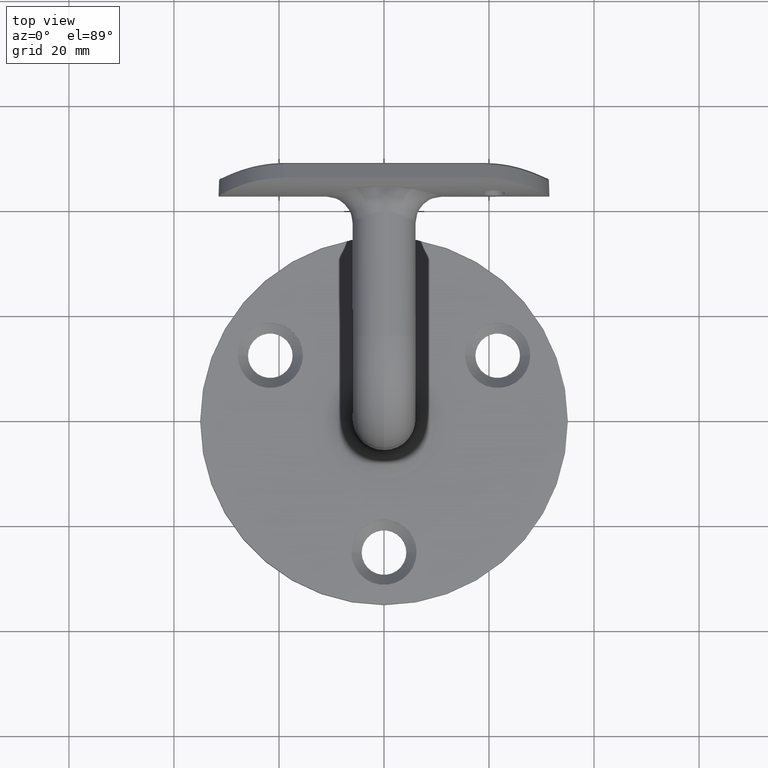
[diagram: clean part render]
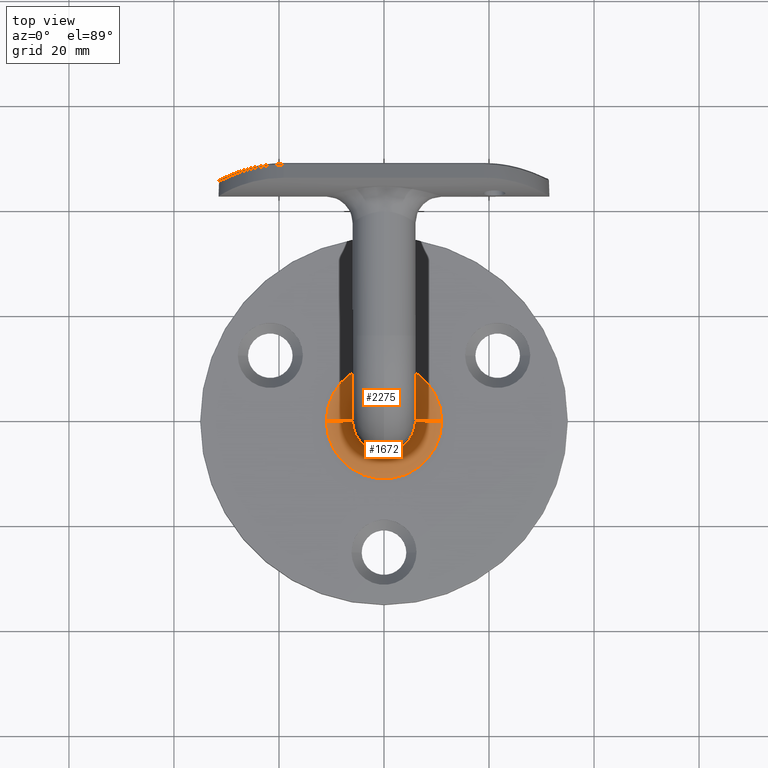
[diagram: same view with one multi-face feature highlighted, each face labeled with its STEP entity id]
A machine part, top view. The highlighted faces form ONE feature: a constant-radius fillet chain: 2 tangent blend faces with common blend radius 5 mm. The faces share edges in the B-rep.
Their STEP definitions:
[1] entity #1672 (Torus):
#450 = DIRECTION ( 'NONE',  ( 0.000000000000000000, 0.000000000000000000, 1.000000000000000000 ) ) ;
#535 = VERTEX_POINT ( 'NONE', #8327 ) ;
#768 = DIRECTION ( 'NONE',  ( 0.000000000000000000, -1.000000000000000000, 0.000000000000000000 ) ) ;
#859 = VERTEX_POINT ( 'NONE', #8415 ) ;
#971 = DIRECTION ( 'NONE',  ( 0.000000000000000000, 0.000000000000000000, -1.000000000000000000 ) ) ;
#1136 = AXIS2_PLACEMENT_3D ( 'NONE', #4525, #14401, #10807 ) ;
#1672 = ADVANCED_FACE ( 'NONE', ( #12114 ), #2709, .F. ) ;
#1696 = DIRECTION ( 'NONE',  ( 1.000000000000000000, 0.000000000000000000, 0.000000000000000000 ) ) ;
#2709 = TOROIDAL_SURFACE ( 'NONE', #12638, 11.00000000000000178, 5.000000000000000000 ) ;
#3228 = AXIS2_PLACEMENT_3D ( 'NONE', #8409, #7196, #12220 ) ;
#3425 = CARTESIAN_POINT ( 'NONE',  ( 11.00000000000000178, -1.156482317317871133E-15, 5.000000000000000888 ) ) ;
#3997 = CIRCLE ( 'NONE', #8466, 11.00000000000000178 ) ;
#4525 = CARTESIAN_POINT ( 'NONE',  ( 0.000000000000000000, -1.156482317317871133E-15, 10.00000000000000178 ) ) ;
#4552 = ORIENTED_EDGE ( 'NONE', *, *, #9176, .F. ) ;
#4605 = CARTESIAN_POINT ( 'NONE',  ( -6.000000000000000888, -1.155325380426208949E-16, 10.00000000000000178 ) ) ;
#4941 = CIRCLE ( 'NONE', #1136, 6.000000000000000888 ) ;
#5035 = ORIENTED_EDGE ( 'NONE', *, *, #9914, .T. ) ;
#5096 = CIRCLE ( 'NONE', #3228, 4.999999999999999112 ) ;
#5295 = EDGE_CURVE ( 'NONE', #5570, #535, #3997, .T. ) ;
#5570 = VERTEX_POINT ( 'NONE', #3425 ) ;
#5826 = DIRECTION ( 'NONE',  ( -0.000000000000000000, -0.000000000000000000, -1.000000000000000000 ) ) ;
#6218 = DIRECTION ( 'NONE',  ( 0.000000000000000000, 0.000000000000000000, 1.000000000000000000 ) ) ;
#6479 = CIRCLE ( 'NONE', #13006, 6.000000000000000888 ) ;
#6890 = EDGE_CURVE ( 'NONE', #15431, #859, #4941, .T. ) ;
#7196 = DIRECTION ( 'NONE',  ( 1.224646799147353207E-16, 1.000000000000000000, -0.000000000000000000 ) ) ;
#7334 = ORIENTED_EDGE ( 'NONE', *, *, #5295, .F. ) ;
#7584 = DIRECTION ( 'NONE',  ( 1.000000000000000000, 0.000000000000000000, 0.000000000000000000 ) ) ;
#8135 = VERTEX_POINT ( 'NONE', #4605 ) ;
#8261 = CARTESIAN_POINT ( 'NONE',  ( 11.00000000000000178, -1.156482317317871133E-15, 10.00000000000000178 ) ) ;
#8327 = CARTESIAN_POINT ( 'NONE',  ( -11.00000000000000178, 1.906291617442173946E-16, 5.000000000000000888 ) ) ;
#8409 = CARTESIAN_POINT ( 'NONE',  ( -11.00000000000000178, 1.906291617442174932E-16, 10.00000000000000178 ) ) ;
#8415 = CARTESIAN_POINT ( 'NONE',  ( 6.000000000000000888, -1.156482317317871133E-15, 10.00000000000000178 ) ) ;
#8466 = AXIS2_PLACEMENT_3D ( 'NONE', #13329, #5826, #15836 ) ;
#9147 = CARTESIAN_POINT ( 'NONE',  ( 0.000000000000000000, -1.156482317317871133E-15, 10.00000000000000178 ) ) ;
#9176 = EDGE_CURVE ( 'NONE', #859, #5570, #10414, .T. ) ;
#9757 = EDGE_LOOP ( 'NONE', ( #10744, #5035, #7334, #4552, #10546 ) ) ;
#9914 = EDGE_CURVE ( 'NONE', #8135, #535, #5096, .T. ) ;
#10414 = CIRCLE ( 'NONE', #12783, 5.000000000000000000 ) ;
#10546 = ORIENTED_EDGE ( 'NONE', *, *, #6890, .F. ) ;
#10744 = ORIENTED_EDGE ( 'NONE', *, *, #15260, .F. ) ;
#10807 = DIRECTION ( 'NONE',  ( 1.000000000000000000, 0.000000000000000000, 0.000000000000000000 ) ) ;
#11159 = CARTESIAN_POINT ( 'NONE',  ( 0.000000000000000000, -1.156482317317871133E-15, 10.00000000000000178 ) ) ;
#11961 = CARTESIAN_POINT ( 'NONE',  ( 7.347880794884120722E-16, -6.000000000000001776, 10.00000000000000178 ) ) ;
#12114 = FACE_OUTER_BOUND ( 'NONE', #9757, .T. ) ;
#12220 = DIRECTION ( 'NONE',  ( -1.000000000000000000, 1.224646799147353454E-16, 0.000000000000000000 ) ) ;
#12638 = AXIS2_PLACEMENT_3D ( 'NONE', #9147, #450, #1696 ) ;
#12783 = AXIS2_PLACEMENT_3D ( 'NONE', #8261, #768, #971 ) ;
#13006 = AXIS2_PLACEMENT_3D ( 'NONE', #11159, #6218, #7584 ) ;
#13329 = CARTESIAN_POINT ( 'NONE',  ( 0.000000000000000000, -1.156482317317871133E-15, 5.000000000000000000 ) ) ;
#14401 = DIRECTION ( 'NONE',  ( 0.000000000000000000, 0.000000000000000000, 1.000000000000000000 ) ) ;
#15260 = EDGE_CURVE ( 'NONE', #8135, #15431, #6479, .T. ) ;
#15431 = VERTEX_POINT ( 'NONE', #11961 ) ;
#15836 = DIRECTION ( 'NONE',  ( 1.000000000000000000, 0.000000000000000000, 0.000000000000000000 ) ) ;
[2] entity #2275 (Torus):
#373 = ORIENTED_EDGE ( 'NONE', *, *, #9176, .T. ) ;
#485 = CARTESIAN_POINT ( 'NONE',  ( 0.000000000000000000, -1.156482317317871133E-15, 10.00000000000000178 ) ) ;
#529 = ORIENTED_EDGE ( 'NONE', *, *, #6138, .F. ) ;
#535 = VERTEX_POINT ( 'NONE', #8327 ) ;
#768 = DIRECTION ( 'NONE',  ( 0.000000000000000000, -1.000000000000000000, 0.000000000000000000 ) ) ;
#804 = DIRECTION ( 'NONE',  ( 1.000000000000000000, 0.000000000000000000, 0.000000000000000000 ) ) ;
#859 = VERTEX_POINT ( 'NONE', #8415 ) ;
#971 = DIRECTION ( 'NONE',  ( 0.000000000000000000, 0.000000000000000000, -1.000000000000000000 ) ) ;
#2275 = ADVANCED_FACE ( 'NONE', ( #6635 ), #16225, .F. ) ;
#2322 = DIRECTION ( 'NONE',  ( 1.000000000000000000, 0.000000000000000000, 0.000000000000000000 ) ) ;
#2385 = DIRECTION ( 'NONE',  ( 1.000000000000000000, 0.000000000000000000, 0.000000000000000000 ) ) ;
#2816 = EDGE_CURVE ( 'NONE', #859, #12305, #6220, .T. ) ;
#3228 = AXIS2_PLACEMENT_3D ( 'NONE', #8409, #7196, #12220 ) ;
#3425 = CARTESIAN_POINT ( 'NONE',  ( 11.00000000000000178, -1.156482317317871133E-15, 5.000000000000000888 ) ) ;
#3784 = ORIENTED_EDGE ( 'NONE', *, *, #9914, .F. ) ;
#4339 = DIRECTION ( 'NONE',  ( 0.000000000000000000, 0.000000000000000000, 1.000000000000000000 ) ) ;
#4381 = CIRCLE ( 'NONE', #7632, 11.00000000000000178 ) ;
#4605 = CARTESIAN_POINT ( 'NONE',  ( -6.000000000000000888, -1.155325380426208949E-16, 10.00000000000000178 ) ) ;
#4773 = CARTESIAN_POINT ( 'NONE',  ( 0.000000000000000000, -1.156482317317871133E-15, 10.00000000000000178 ) ) ;
#5096 = CIRCLE ( 'NONE', #3228, 4.999999999999999112 ) ;
#5202 = ORIENTED_EDGE ( 'NONE', *, *, #16038, .F. ) ;
#5570 = VERTEX_POINT ( 'NONE', #3425 ) ;
#5617 = DIRECTION ( 'NONE',  ( 1.000000000000000000, 0.000000000000000000, 0.000000000000000000 ) ) ;
#5823 = DIRECTION ( 'NONE',  ( -0.000000000000000000, -0.000000000000000000, -1.000000000000000000 ) ) ;
#6138 = EDGE_CURVE ( 'NONE', #535, #5570, #4381, .T. ) ;
#6220 = CIRCLE ( 'NONE', #15677, 6.000000000000000888 ) ;
#6279 = CARTESIAN_POINT ( 'NONE',  ( 0.000000000000000000, 6.000000000000000888, 10.00000000000000178 ) ) ;
#6556 = AXIS2_PLACEMENT_3D ( 'NONE', #9898, #7380, #2385 ) ;
#6635 = FACE_OUTER_BOUND ( 'NONE', #12882, .T. ) ;
#6655 = CIRCLE ( 'NONE', #6556, 6.000000000000000888 ) ;
#7196 = DIRECTION ( 'NONE',  ( 1.224646799147353207E-16, 1.000000000000000000, -0.000000000000000000 ) ) ;
#7380 = DIRECTION ( 'NONE',  ( 0.000000000000000000, 0.000000000000000000, 1.000000000000000000 ) ) ;
#7632 = AXIS2_PLACEMENT_3D ( 'NONE', #12217, #5823, #804 ) ;
#8135 = VERTEX_POINT ( 'NONE', #4605 ) ;
#8261 = CARTESIAN_POINT ( 'NONE',  ( 11.00000000000000178, -1.156482317317871133E-15, 10.00000000000000178 ) ) ;
#8327 = CARTESIAN_POINT ( 'NONE',  ( -11.00000000000000178, 1.906291617442173946E-16, 5.000000000000000888 ) ) ;
#8409 = CARTESIAN_POINT ( 'NONE',  ( -11.00000000000000178, 1.906291617442174932E-16, 10.00000000000000178 ) ) ;
#8415 = CARTESIAN_POINT ( 'NONE',  ( 6.000000000000000888, -1.156482317317871133E-15, 10.00000000000000178 ) ) ;
#9176 = EDGE_CURVE ( 'NONE', #859, #5570, #10414, .T. ) ;
#9853 = ORIENTED_EDGE ( 'NONE', *, *, #2816, .F. ) ;
#9898 = CARTESIAN_POINT ( 'NONE',  ( 0.000000000000000000, -1.156482317317871133E-15, 10.00000000000000178 ) ) ;
#9914 = EDGE_CURVE ( 'NONE', #8135, #535, #5096, .T. ) ;
#10124 = AXIS2_PLACEMENT_3D ( 'NONE', #4773, #13387, #2322 ) ;
#10414 = CIRCLE ( 'NONE', #12783, 5.000000000000000000 ) ;
#12217 = CARTESIAN_POINT ( 'NONE',  ( 0.000000000000000000, -1.156482317317871133E-15, 5.000000000000000000 ) ) ;
#12220 = DIRECTION ( 'NONE',  ( -1.000000000000000000, 1.224646799147353454E-16, 0.000000000000000000 ) ) ;
#12305 = VERTEX_POINT ( 'NONE', #6279 ) ;
#12783 = AXIS2_PLACEMENT_3D ( 'NONE', #8261, #768, #971 ) ;
#12882 = EDGE_LOOP ( 'NONE', ( #3784, #5202, #9853, #373, #529 ) ) ;
#13387 = DIRECTION ( 'NONE',  ( 0.000000000000000000, 0.000000000000000000, 1.000000000000000000 ) ) ;
#15677 = AXIS2_PLACEMENT_3D ( 'NONE', #485, #4339, #5617 ) ;
#16038 = EDGE_CURVE ( 'NONE', #12305, #8135, #6655, .T. ) ;
#16225 = TOROIDAL_SURFACE ( 'NONE', #10124, 11.00000000000000178, 5.000000000000000000 ) ;